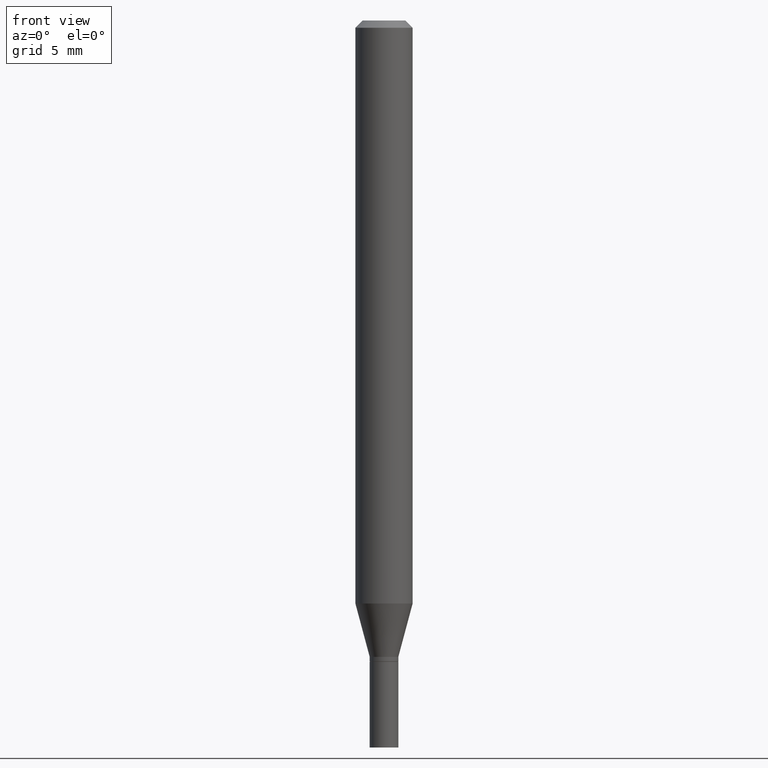
[diagram: clean part render]
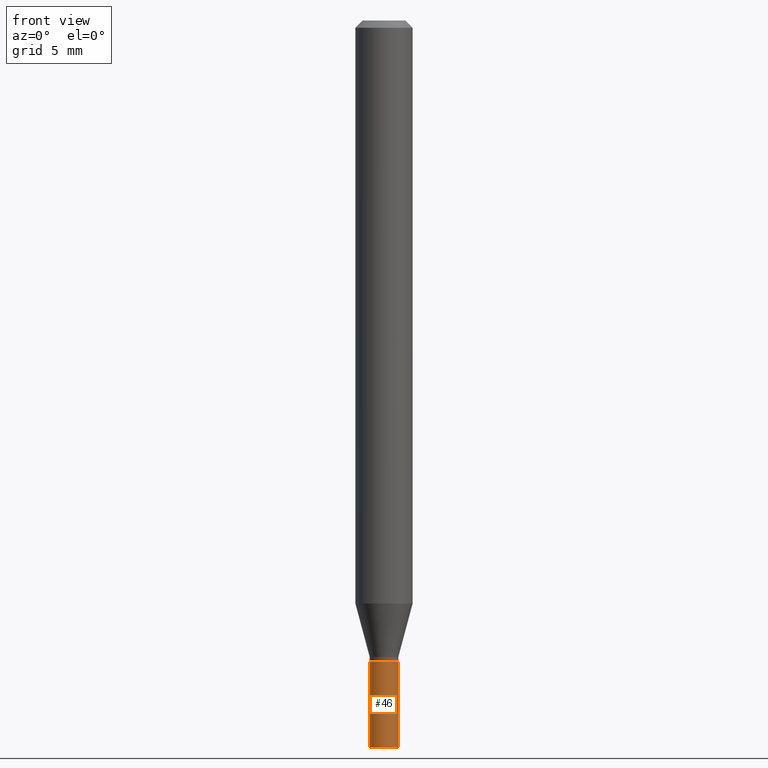
[diagram: same view with one face highlighted and labeled with its STEP entity id]
A machine part, front view. The second image highlights one B-rep face of the part: STEP entity #46.
In plain terms, the highlighted cylindrical surface (edge-blend (fillet) strip) has radius 0.7506 mm, axis along (-0, 0, 1).
Its self-contained STEP definition (entity closure, byte-faithful):
#1 = CARTESIAN_POINT ( 'NONE',  ( 0.02954999999999999988, -2.063465471256291914E-16, 1.440910237247699070E-30 ) ) ;
#46 = ADVANCED_FACE ( 'NONE', ( #128 ), #154, .T. ) ;
#52 = VERTEX_POINT ( 'NONE', #278 ) ;
#54 = DIRECTION ( 'NONE',  ( 1.000000000000000000, -6.982962677686261977E-15, 0.000000000000000000 ) ) ;
#55 = VECTOR ( 'NONE', #140, 39.37007874015748143 ) ;
#72 = EDGE_CURVE ( 'NONE', #52, #437, #360, .T. ) ;
#79 = VERTEX_POINT ( 'NONE', #92 ) ;
#92 = CARTESIAN_POINT ( 'NONE',  ( 0.02954999999999999988, -5.443568555390347787E-15, -1.500000000000000222 ) ) ;
#115 = LINE ( 'NONE', #1, #316 ) ;
#122 = EDGE_CURVE ( 'NONE', #275, #79, #343, .T. ) ;
#128 = FACE_OUTER_BOUND ( 'NONE', #376, .T. ) ;
#134 = ORIENTED_EDGE ( 'NONE', *, *, #172, .F. ) ;
#138 = DIRECTION ( 'NONE',  ( -2.445468806185136877E-29, 3.491481338843145188E-15, 1.000000000000000000 ) ) ;
#140 = DIRECTION ( 'NONE',  ( -2.445468806185136877E-29, 3.491481338843145188E-15, 1.000000000000000000 ) ) ;
#154 = CYLINDRICAL_SURFACE ( 'NONE', #434, 0.02954999999999999988 ) ;
#172 = EDGE_CURVE ( 'NONE', #275, #52, #325, .T. ) ;
#185 = AXIS2_PLACEMENT_3D ( 'NONE', #440, #384, #54 ) ;
#192 = ORIENTED_EDGE ( 'NONE', *, *, #122, .T. ) ;
#214 = ORIENTED_EDGE ( 'NONE', *, *, #370, .T. ) ;
#222 = AXIS2_PLACEMENT_3D ( 'NONE', #283, #393, #357 ) ;
#230 = CARTESIAN_POINT ( 'NONE',  ( -0.02954999999999999988, -4.717911383226106554E-15, -1.500000000000000222 ) ) ;
#231 = DIRECTION ( 'NONE',  ( -2.445468806185136597E-29, 3.491481338843145583E-15, 1.000000000000000000 ) ) ;
#275 = VERTEX_POINT ( 'NONE', #230 ) ;
#278 = CARTESIAN_POINT ( 'NONE',  ( -0.02954999999999999988, -4.717911383226106554E-15, -1.322800000000000198 ) ) ;
#283 = CARTESIAN_POINT ( 'NONE',  ( 3.668203209277704895E-29, -5.237222008264718177E-15, -1.500000000000000222 ) ) ;
#310 = DIRECTION ( 'NONE',  ( 1.000000000000000000, -6.982962677686266711E-15, 4.876176775795935793E-29 ) ) ;
#316 = VECTOR ( 'NONE', #138, 39.37007874015748143 ) ;
#322 = CARTESIAN_POINT ( 'NONE',  ( 0.02954999999999999988, -4.824878062147342468E-15, -1.322800000000000198 ) ) ;
#325 = LINE ( 'NONE', #463, #55 ) ;
#341 = CARTESIAN_POINT ( 'NONE',  ( 0.000000000000000000, 0.000000000000000000, 0.000000000000000000 ) ) ;
#343 = CIRCLE ( 'NONE', #222, 0.02954999999999999988 ) ;
#353 = ORIENTED_EDGE ( 'NONE', *, *, #72, .F. ) ;
#357 = DIRECTION ( 'NONE',  ( 1.000000000000000000, -6.982962677686261977E-15, 0.000000000000000000 ) ) ;
#360 = CIRCLE ( 'NONE', #185, 0.02954999999999999988 ) ;
#370 = EDGE_CURVE ( 'NONE', #79, #437, #115, .T. ) ;
#376 = EDGE_LOOP ( 'NONE', ( #134, #192, #214, #353 ) ) ;
#384 = DIRECTION ( 'NONE',  ( -2.445468806185136597E-29, 3.491481338843145583E-15, 1.000000000000000000 ) ) ;
#393 = DIRECTION ( 'NONE',  ( -2.445468806185136597E-29, 3.491481338843145583E-15, 1.000000000000000000 ) ) ;
#434 = AXIS2_PLACEMENT_3D ( 'NONE', #341, #231, #310 ) ;
#437 = VERTEX_POINT ( 'NONE', #322 ) ;
#440 = CARTESIAN_POINT ( 'NONE',  ( 3.234866136821698561E-29, -4.618531515021712857E-15, -1.322800000000000198 ) ) ;
#463 = CARTESIAN_POINT ( 'NONE',  ( -0.02954999999999999988, 2.099653784171096041E-16, -1.453545319170324550E-30 ) ) ;